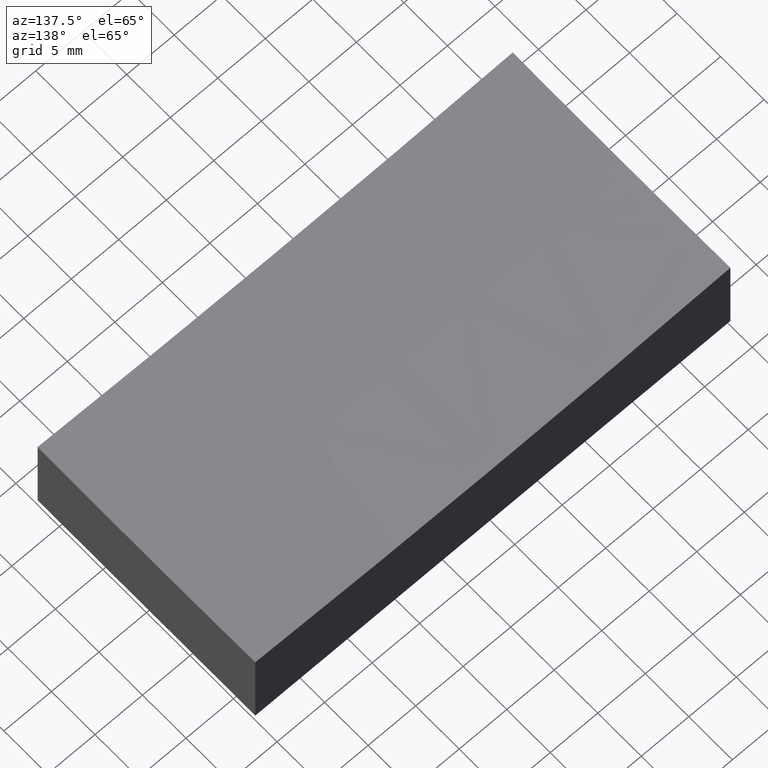
[diagram: clean part render]
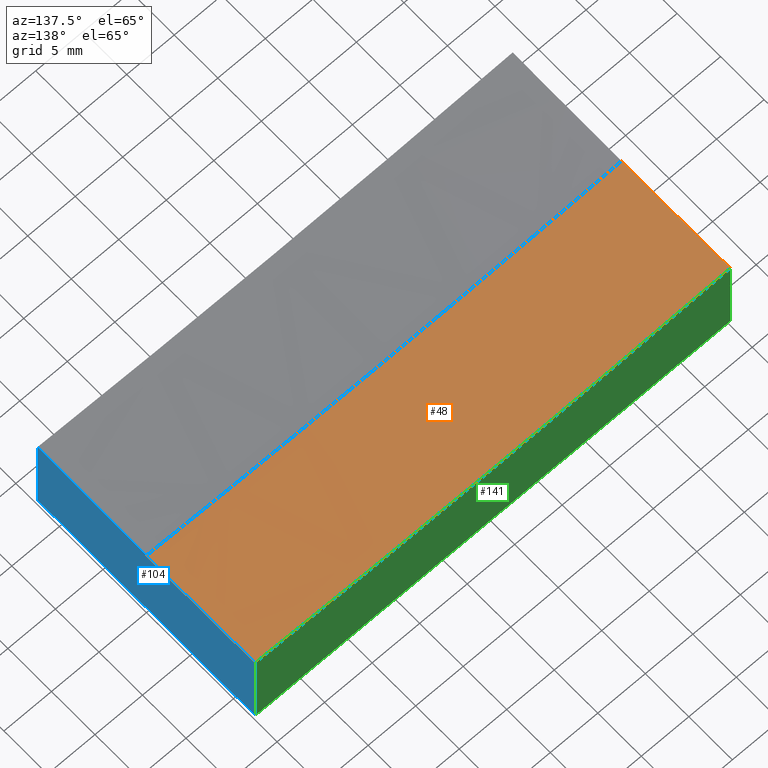
[diagram: same view with three faces highlighted in distinct colors, each labeled with its STEP entity id]
A machine part, auxiliary view with three faces highlighted in distinct colors.
Their STEP definitions:

[orange] entity #48 — the highlighted spherical surface has radius 500 mm.
#5 = ORIENTED_EDGE ( 'NONE', *, *, #74, .F. ) ;
#8 = FACE_OUTER_BOUND ( 'NONE', #66, .T. ) ;
#14 = CIRCLE ( 'NONE', #90, 499.9999999999998863 ) ;
#17 = CARTESIAN_POINT ( 'NONE',  ( 25.00000000000000000, -3.851859888774471706E-31, 9.625391114045534380 ) ) ;
#37 = CARTESIAN_POINT ( 'NONE',  ( -25.00000000000000000, -3.061616997868383043E-15, 9.625391114045534380 ) ) ;
#48 = ADVANCED_FACE ( 'NONE', ( #8 ), #126, .F. ) ;
#54 = DIRECTION ( 'NONE',  ( 0.000000000000000000, 0.000000000000000000, 1.000000000000000000 ) ) ;
#56 = CARTESIAN_POINT ( 'NONE',  ( -25.00000000000000000, 12.50000000000000000, 9.781861307103511649 ) ) ;
#66 = EDGE_LOOP ( 'NONE', ( #214, #207, #5, #107, #100 ) ) ;
#71 = VERTEX_POINT ( 'NONE', #56 ) ;
#73 = DIRECTION ( 'NONE',  ( 1.224646799147353207E-16, -1.000000000000000000, -9.557981066130911132E-36 ) ) ;
#74 = EDGE_CURVE ( 'NONE', #190, #180, #14, .T. ) ;
#85 = EDGE_CURVE ( 'NONE', #232, #71, #113, .T. ) ;
#87 = DIRECTION ( 'NONE',  ( 1.000000000000000000, 0.000000000000000000, 0.000000000000000000 ) ) ;
#90 = AXIS2_PLACEMENT_3D ( 'NONE', #171, #110, #54 ) ;
#99 = CARTESIAN_POINT ( 'NONE',  ( 25.00000000000000000, -6.938893903907228378E-15, 509.0000000000000000 ) ) ;
#100 = ORIENTED_EDGE ( 'NONE', *, *, #85, .T. ) ;
#107 = ORIENTED_EDGE ( 'NONE', *, *, #246, .T. ) ;
#108 = EDGE_CURVE ( 'NONE', #144, #180, #173, .T. ) ;
#110 = DIRECTION ( 'NONE',  ( 0.000000000000000000, 1.000000000000000000, -0.000000000000000000 ) ) ;
#113 = CIRCLE ( 'NONE', #135, 499.8437255783051683 ) ;
#123 = CARTESIAN_POINT ( 'NONE',  ( -25.00000000000000000, -3.469446951953614189E-15, 509.0000000000000000 ) ) ;
#126 = SPHERICAL_SURFACE ( 'NONE', #229, 500.0000000000000000 ) ;
#130 = CARTESIAN_POINT ( 'NONE',  ( 0.000000000000000000, 12.50000000000000000, 509.0000000000000000 ) ) ;
#131 = DIRECTION ( 'NONE',  ( -0.000000000000000000, 1.000000000000000000, -0.000000000000000000 ) ) ;
#132 = AXIS2_PLACEMENT_3D ( 'NONE', #123, #156, #137 ) ;
#133 = CARTESIAN_POINT ( 'NONE',  ( 3.057714655955275700E-14, 0.000000000000000000, 9.000000000000007105 ) ) ;
#134 = DIRECTION ( 'NONE',  ( 1.000000000000000000, -2.775557561562891351E-16, -0.000000000000000000 ) ) ;
#135 = AXIS2_PLACEMENT_3D ( 'NONE', #130, #131, #191 ) ;
#137 = DIRECTION ( 'NONE',  ( -1.389516763655059887E-16, 1.000000000000000000, 0.000000000000000000 ) ) ;
#144 = VERTEX_POINT ( 'NONE', #37 ) ;
#146 = CIRCLE ( 'NONE', #132, 499.3746088859545011 ) ;
#156 = DIRECTION ( 'NONE',  ( -1.000000000000000000, -1.387778780781445676E-16, 0.000000000000000000 ) ) ;
#159 = AXIS2_PLACEMENT_3D ( 'NONE', #244, #73, #194 ) ;
#168 = EDGE_CURVE ( 'NONE', #71, #144, #146, .T. ) ;
#171 = CARTESIAN_POINT ( 'NONE',  ( 0.000000000000000000, 0.000000000000000000, 509.0000000000000000 ) ) ;
#173 = CIRCLE ( 'NONE', #159, 500.0000000000000000 ) ;
#174 = CARTESIAN_POINT ( 'NONE',  ( 25.00000000000000355, 12.50000000000000000, 9.781861307103511649 ) ) ;
#178 = DIRECTION ( 'NONE',  ( -2.779033527310119773E-16, -1.000000000000000000, 0.000000000000000000 ) ) ;
#180 = VERTEX_POINT ( 'NONE', #133 ) ;
#187 = DIRECTION ( 'NONE',  ( 0.000000000000000000, -1.000000000000000000, -0.000000000000000000 ) ) ;
#190 = VERTEX_POINT ( 'NONE', #17 ) ;
#191 = DIRECTION ( 'NONE',  ( 0.000000000000000000, 0.000000000000000000, -1.000000000000000000 ) ) ;
#194 = DIRECTION ( 'NONE',  ( 1.000000000000000000, 1.224646799147353207E-16, 0.000000000000000000 ) ) ;
#206 = CARTESIAN_POINT ( 'NONE',  ( 0.000000000000000000, 0.000000000000000000, 509.0000000000000000 ) ) ;
#207 = ORIENTED_EDGE ( 'NONE', *, *, #108, .T. ) ;
#208 = CIRCLE ( 'NONE', #220, 499.3746088859545011 ) ;
#214 = ORIENTED_EDGE ( 'NONE', *, *, #168, .T. ) ;
#220 = AXIS2_PLACEMENT_3D ( 'NONE', #99, #134, #178 ) ;
#229 = AXIS2_PLACEMENT_3D ( 'NONE', #206, #187, #87 ) ;
#232 = VERTEX_POINT ( 'NONE', #174 ) ;
#244 = CARTESIAN_POINT ( 'NONE',  ( 0.000000000000000000, 0.000000000000000000, 509.0000000000000000 ) ) ;
#246 = EDGE_CURVE ( 'NONE', #190, #232, #208, .T. ) ;

[blue] entity #104 — the highlighted planar face has unit normal (-1, 0, 0).
#1 = AXIS2_PLACEMENT_3D ( 'NONE', #247, #93, #32 ) ;
#10 = DIRECTION ( 'NONE',  ( 2.775557561562891351E-16, 1.000000000000000000, -0.000000000000000000 ) ) ;
#12 = EDGE_CURVE ( 'NONE', #127, #234, #188, .T. ) ;
#13 = CARTESIAN_POINT ( 'NONE',  ( 24.99999999999999645, -12.50000000000000000, 9.781861307103511649 ) ) ;
#17 = CARTESIAN_POINT ( 'NONE',  ( 25.00000000000000000, -3.851859888774471706E-31, 9.625391114045534380 ) ) ;
#27 = VERTEX_POINT ( 'NONE', #51 ) ;
#32 = DIRECTION ( 'NONE',  ( -2.775557561562891351E-16, -1.000000000000000000, 0.000000000000000000 ) ) ;
#46 = ORIENTED_EDGE ( 'NONE', *, *, #12, .T. ) ;
#51 = CARTESIAN_POINT ( 'NONE',  ( 25.00000000000000355, 12.50000000000000000, 0.000000000000000000 ) ) ;
#52 = EDGE_CURVE ( 'NONE', #234, #27, #223, .T. ) ;
#57 = CARTESIAN_POINT ( 'NONE',  ( 25.00000000000000000, -6.938893903907228378E-15, 509.0000000000000000 ) ) ;
#58 = VECTOR ( 'NONE', #147, 1000.000000000000000 ) ;
#63 = CARTESIAN_POINT ( 'NONE',  ( 24.99999999999999645, -12.50000000000000000, 0.000000000000000000 ) ) ;
#67 = AXIS2_PLACEMENT_3D ( 'NONE', #57, #228, #111 ) ;
#80 = LINE ( 'NONE', #230, #201 ) ;
#82 = DIRECTION ( 'NONE',  ( -0.000000000000000000, -0.000000000000000000, -1.000000000000000000 ) ) ;
#83 = ORIENTED_EDGE ( 'NONE', *, *, #94, .F. ) ;
#91 = FACE_OUTER_BOUND ( 'NONE', #119, .T. ) ;
#93 = DIRECTION ( 'NONE',  ( -1.000000000000000000, 2.775557561562891351E-16, 0.000000000000000000 ) ) ;
#94 = EDGE_CURVE ( 'NONE', #127, #190, #189, .T. ) ;
#99 = CARTESIAN_POINT ( 'NONE',  ( 25.00000000000000000, -6.938893903907228378E-15, 509.0000000000000000 ) ) ;
#101 = VECTOR ( 'NONE', #10, 1000.000000000000000 ) ;
#104 = ADVANCED_FACE ( 'NONE', ( #91 ), #114, .F. ) ;
#111 = DIRECTION ( 'NONE',  ( -2.779033527310119773E-16, -1.000000000000000000, 0.000000000000000000 ) ) ;
#114 = PLANE ( 'NONE',  #1 ) ;
#119 = EDGE_LOOP ( 'NONE', ( #83, #46, #165, #218, #198 ) ) ;
#127 = VERTEX_POINT ( 'NONE', #13 ) ;
#134 = DIRECTION ( 'NONE',  ( 1.000000000000000000, -2.775557561562891351E-16, -0.000000000000000000 ) ) ;
#145 = CARTESIAN_POINT ( 'NONE',  ( 24.99999999999999645, -12.50000000000000000, 15.00000000000000000 ) ) ;
#147 = DIRECTION ( 'NONE',  ( -0.000000000000000000, -0.000000000000000000, -1.000000000000000000 ) ) ;
#165 = ORIENTED_EDGE ( 'NONE', *, *, #52, .T. ) ;
#174 = CARTESIAN_POINT ( 'NONE',  ( 25.00000000000000355, 12.50000000000000000, 9.781861307103511649 ) ) ;
#178 = DIRECTION ( 'NONE',  ( -2.779033527310119773E-16, -1.000000000000000000, 0.000000000000000000 ) ) ;
#188 = LINE ( 'NONE', #145, #58 ) ;
#189 = CIRCLE ( 'NONE', #67, 499.3746088859545011 ) ;
#190 = VERTEX_POINT ( 'NONE', #17 ) ;
#198 = ORIENTED_EDGE ( 'NONE', *, *, #246, .F. ) ;
#201 = VECTOR ( 'NONE', #82, 1000.000000000000000 ) ;
#208 = CIRCLE ( 'NONE', #220, 499.3746088859545011 ) ;
#210 = EDGE_CURVE ( 'NONE', #232, #27, #80, .T. ) ;
#218 = ORIENTED_EDGE ( 'NONE', *, *, #210, .F. ) ;
#220 = AXIS2_PLACEMENT_3D ( 'NONE', #99, #134, #178 ) ;
#223 = LINE ( 'NONE', #241, #101 ) ;
#228 = DIRECTION ( 'NONE',  ( 1.000000000000000000, -2.775557561562891351E-16, -0.000000000000000000 ) ) ;
#230 = CARTESIAN_POINT ( 'NONE',  ( 25.00000000000000355, 12.50000000000000000, 15.00000000000000000 ) ) ;
#232 = VERTEX_POINT ( 'NONE', #174 ) ;
#234 = VERTEX_POINT ( 'NONE', #63 ) ;
#241 = CARTESIAN_POINT ( 'NONE',  ( 25.00000000000000355, 12.50000000000000000, 0.000000000000000000 ) ) ;
#246 = EDGE_CURVE ( 'NONE', #190, #232, #208, .T. ) ;
#247 = CARTESIAN_POINT ( 'NONE',  ( 25.00000000000000355, 12.50000000000000000, 15.00000000000000000 ) ) ;

[green] entity #141 — the highlighted planar face has unit normal (0, -1, 0).
#15 = DIRECTION ( 'NONE',  ( -1.000000000000000000, -0.000000000000000000, -0.000000000000000000 ) ) ;
#16 = CARTESIAN_POINT ( 'NONE',  ( -25.00000000000000000, 12.50000000000000000, 15.00000000000000000 ) ) ;
#27 = VERTEX_POINT ( 'NONE', #51 ) ;
#29 = AXIS2_PLACEMENT_3D ( 'NONE', #16, #158, #42 ) ;
#30 = LINE ( 'NONE', #31, #209 ) ;
#31 = CARTESIAN_POINT ( 'NONE',  ( -25.00000000000000000, 12.50000000000000000, 15.00000000000000000 ) ) ;
#40 = PLANE ( 'NONE',  #29 ) ;
#42 = DIRECTION ( 'NONE',  ( 0.000000000000000000, -0.000000000000000000, -1.000000000000000000 ) ) ;
#44 = VECTOR ( 'NONE', #15, 1000.000000000000000 ) ;
#49 = VERTEX_POINT ( 'NONE', #166 ) ;
#51 = CARTESIAN_POINT ( 'NONE',  ( 25.00000000000000355, 12.50000000000000000, 0.000000000000000000 ) ) ;
#53 = CARTESIAN_POINT ( 'NONE',  ( -25.00000000000000000, 12.50000000000000000, 0.000000000000000000 ) ) ;
#56 = CARTESIAN_POINT ( 'NONE',  ( -25.00000000000000000, 12.50000000000000000, 9.781861307103511649 ) ) ;
#61 = EDGE_CURVE ( 'NONE', #71, #49, #30, .T. ) ;
#71 = VERTEX_POINT ( 'NONE', #56 ) ;
#76 = ORIENTED_EDGE ( 'NONE', *, *, #61, .F. ) ;
#80 = LINE ( 'NONE', #230, #201 ) ;
#82 = DIRECTION ( 'NONE',  ( -0.000000000000000000, -0.000000000000000000, -1.000000000000000000 ) ) ;
#85 = EDGE_CURVE ( 'NONE', #232, #71, #113, .T. ) ;
#88 = ORIENTED_EDGE ( 'NONE', *, *, #85, .F. ) ;
#105 = ORIENTED_EDGE ( 'NONE', *, *, #120, .T. ) ;
#113 = CIRCLE ( 'NONE', #135, 499.8437255783051683 ) ;
#120 = EDGE_CURVE ( 'NONE', #27, #49, #148, .T. ) ;
#130 = CARTESIAN_POINT ( 'NONE',  ( 0.000000000000000000, 12.50000000000000000, 509.0000000000000000 ) ) ;
#131 = DIRECTION ( 'NONE',  ( -0.000000000000000000, 1.000000000000000000, -0.000000000000000000 ) ) ;
#135 = AXIS2_PLACEMENT_3D ( 'NONE', #130, #131, #191 ) ;
#141 = ADVANCED_FACE ( 'NONE', ( #236 ), #40, .F. ) ;
#148 = LINE ( 'NONE', #53, #44 ) ;
#150 = DIRECTION ( 'NONE',  ( -0.000000000000000000, -0.000000000000000000, -1.000000000000000000 ) ) ;
#158 = DIRECTION ( 'NONE',  ( 0.000000000000000000, -1.000000000000000000, 0.000000000000000000 ) ) ;
#166 = CARTESIAN_POINT ( 'NONE',  ( -25.00000000000000000, 12.50000000000000000, 0.000000000000000000 ) ) ;
#170 = ORIENTED_EDGE ( 'NONE', *, *, #210, .T. ) ;
#174 = CARTESIAN_POINT ( 'NONE',  ( 25.00000000000000355, 12.50000000000000000, 9.781861307103511649 ) ) ;
#182 = EDGE_LOOP ( 'NONE', ( #88, #170, #105, #76 ) ) ;
#191 = DIRECTION ( 'NONE',  ( 0.000000000000000000, 0.000000000000000000, -1.000000000000000000 ) ) ;
#201 = VECTOR ( 'NONE', #82, 1000.000000000000000 ) ;
#209 = VECTOR ( 'NONE', #150, 1000.000000000000000 ) ;
#210 = EDGE_CURVE ( 'NONE', #232, #27, #80, .T. ) ;
#230 = CARTESIAN_POINT ( 'NONE',  ( 25.00000000000000355, 12.50000000000000000, 15.00000000000000000 ) ) ;
#232 = VERTEX_POINT ( 'NONE', #174 ) ;
#236 = FACE_OUTER_BOUND ( 'NONE', #182, .T. ) ;